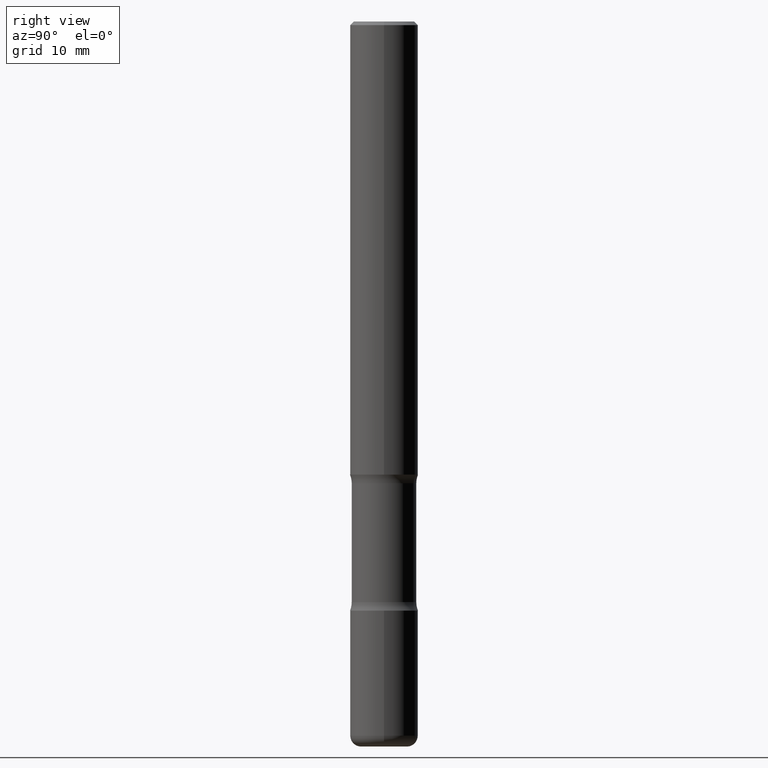
[diagram: clean part render]
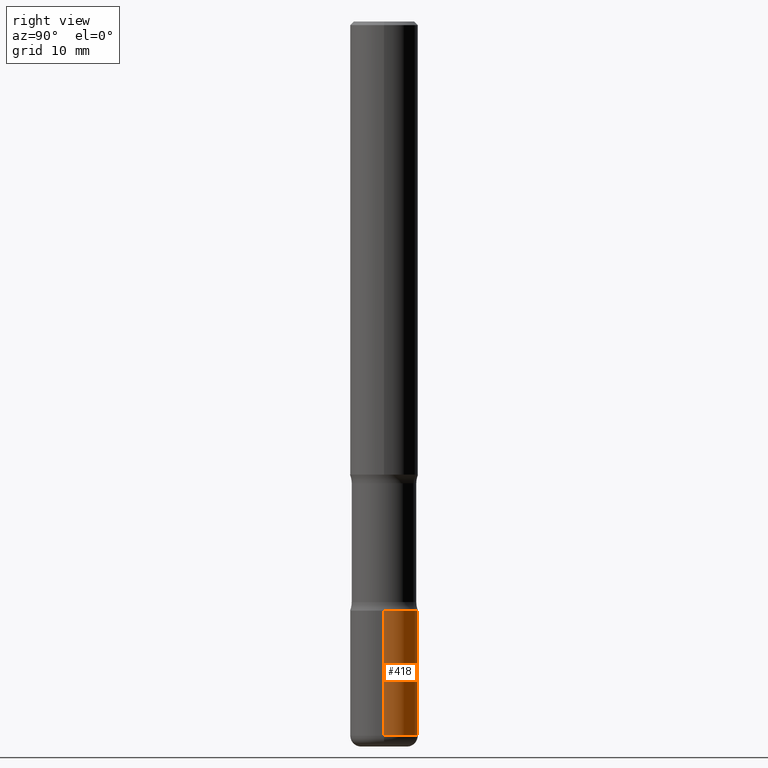
[diagram: same view with one face highlighted and labeled with its STEP entity id]
A machine part, right view. The second image highlights one B-rep face of the part: STEP entity #418.
In plain terms, the highlighted cylindrical surface (edge-blend (fillet) strip) has radius 4.7625 mm, axis along (-0, 0, 1).
Its self-contained STEP definition (entity closure, byte-faithful):
#1 = CYLINDRICAL_SURFACE ( 'NONE', #385, 0.1875000000000001110 ) ;
#5 = VERTEX_POINT ( 'NONE', #184 ) ;
#7 = VERTEX_POINT ( 'NONE', #391 ) ;
#9 = DIRECTION ( 'NONE',  ( 1.000000000000000000, -6.982962677686266711E-15, 4.876176775795935793E-29 ) ) ;
#19 = VERTEX_POINT ( 'NONE', #103 ) ;
#43 = ORIENTED_EDGE ( 'NONE', *, *, #225, .F. ) ;
#72 = DIRECTION ( 'NONE',  ( -2.445468806185136877E-29, 3.491481338843145188E-15, 1.000000000000000000 ) ) ;
#86 = DIRECTION ( 'NONE',  ( 1.000000000000000000, -6.982962677686269866E-15, 0.000000000000000000 ) ) ;
#103 = CARTESIAN_POINT ( 'NONE',  ( -0.1875000000000001110, -1.242416884549180617E-14, -3.939999999999999947 ) ) ;
#108 = DIRECTION ( 'NONE',  ( -2.445468806185136877E-29, 3.491481338843145188E-15, 1.000000000000000000 ) ) ;
#122 = VERTEX_POINT ( 'NONE', #401 ) ;
#148 = CARTESIAN_POINT ( 'NONE',  ( -0.1875000000000001110, 1.332267629550188637E-15, -9.223003294227953596E-30 ) ) ;
#153 = EDGE_CURVE ( 'NONE', #19, #5, #508, .T. ) ;
#157 = ORIENTED_EDGE ( 'NONE', *, *, #229, .T. ) ;
#165 = DIRECTION ( 'NONE',  ( -2.445468806185136597E-29, 3.491481338843145583E-15, 1.000000000000000000 ) ) ;
#172 = DIRECTION ( 'NONE',  ( -2.445468806185136597E-29, 3.491481338843145583E-15, 1.000000000000000000 ) ) ;
#184 = CARTESIAN_POINT ( 'NONE',  ( -0.1875000000000000833, -1.121960778359092137E-14, -3.250000000000000444 ) ) ;
#190 = CIRCLE ( 'NONE', #474, 0.1875000000000001388 ) ;
#192 = CARTESIAN_POINT ( 'NONE',  ( 9.635147096369438236E-29, -1.375643647504199401E-14, -3.939999999999999947 ) ) ;
#210 = CARTESIAN_POINT ( 'NONE',  ( 7.947773620101696182E-29, -1.134731435124022600E-14, -3.250000000000000444 ) ) ;
#225 = EDGE_CURVE ( 'NONE', #7, #122, #280, .T. ) ;
#229 = EDGE_CURVE ( 'NONE', #7, #19, #190, .T. ) ;
#244 = ORIENTED_EDGE ( 'NONE', *, *, #319, .F. ) ;
#248 = EDGE_LOOP ( 'NONE', ( #157, #515, #244, #43 ) ) ;
#280 = LINE ( 'NONE', #282, #323 ) ;
#282 = CARTESIAN_POINT ( 'NONE',  ( 0.1875000000000001110, -1.309305502066175797E-15, 9.142831454617385217E-30 ) ) ;
#319 = EDGE_CURVE ( 'NONE', #122, #5, #394, .T. ) ;
#323 = VECTOR ( 'NONE', #72, 39.37007874015748143 ) ;
#360 = DIRECTION ( 'NONE',  ( 1.000000000000000000, -6.982962677686267499E-15, 0.000000000000000000 ) ) ;
#385 = AXIS2_PLACEMENT_3D ( 'NONE', #387, #165, #9 ) ;
#387 = CARTESIAN_POINT ( 'NONE',  ( 0.000000000000000000, 0.000000000000000000, 0.000000000000000000 ) ) ;
#391 = CARTESIAN_POINT ( 'NONE',  ( 0.1875000000000001110, -1.506574197710817060E-14, -3.939999999999999947 ) ) ;
#394 = CIRCLE ( 'NONE', #413, 0.1875000000000000833 ) ;
#401 = CARTESIAN_POINT ( 'NONE',  ( 0.1875000000000000833, -1.265661985330640259E-14, -3.250000000000000444 ) ) ;
#413 = AXIS2_PLACEMENT_3D ( 'NONE', #210, #172, #86 ) ;
#418 = ADVANCED_FACE ( 'NONE', ( #476 ), #1, .T. ) ;
#474 = AXIS2_PLACEMENT_3D ( 'NONE', #192, #544, #360 ) ;
#476 = FACE_OUTER_BOUND ( 'NONE', #248, .T. ) ;
#508 = LINE ( 'NONE', #148, #539 ) ;
#515 = ORIENTED_EDGE ( 'NONE', *, *, #153, .T. ) ;
#539 = VECTOR ( 'NONE', #108, 39.37007874015748143 ) ;
#544 = DIRECTION ( 'NONE',  ( -2.445468806185136597E-29, 3.491481338843145583E-15, 1.000000000000000000 ) ) ;